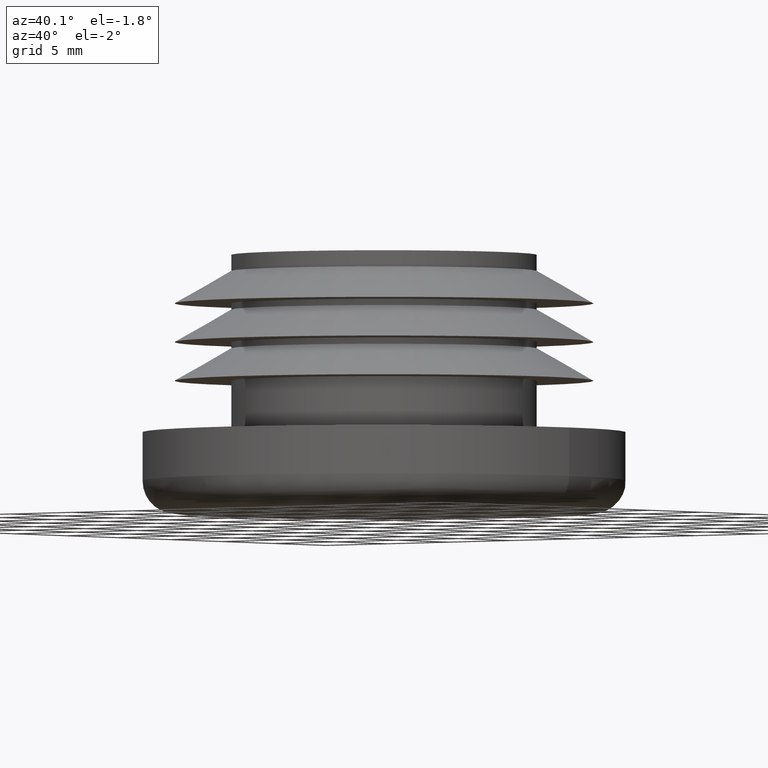
[diagram: clean part render]
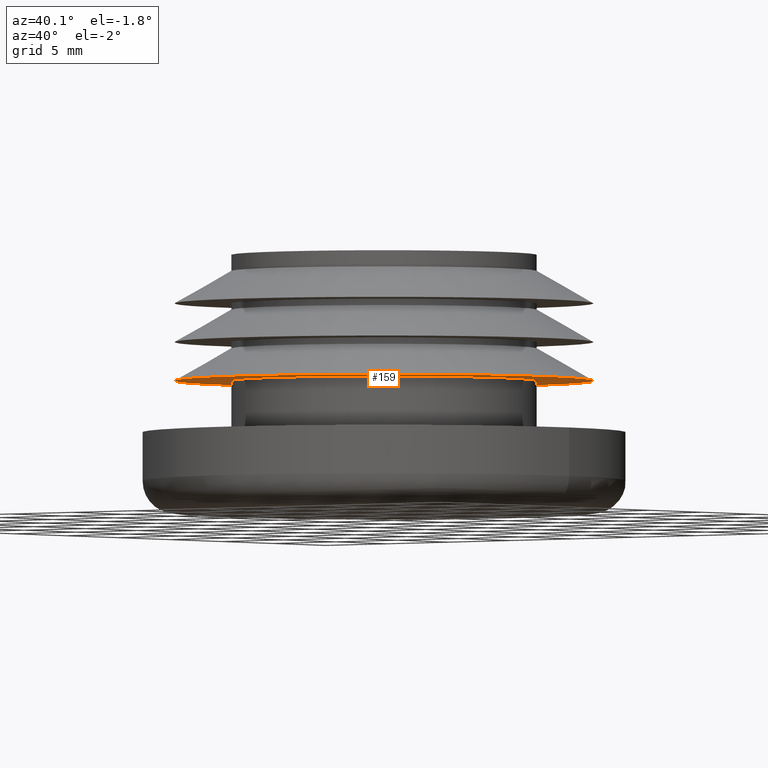
[diagram: same view with one face highlighted and labeled with its STEP entity id]
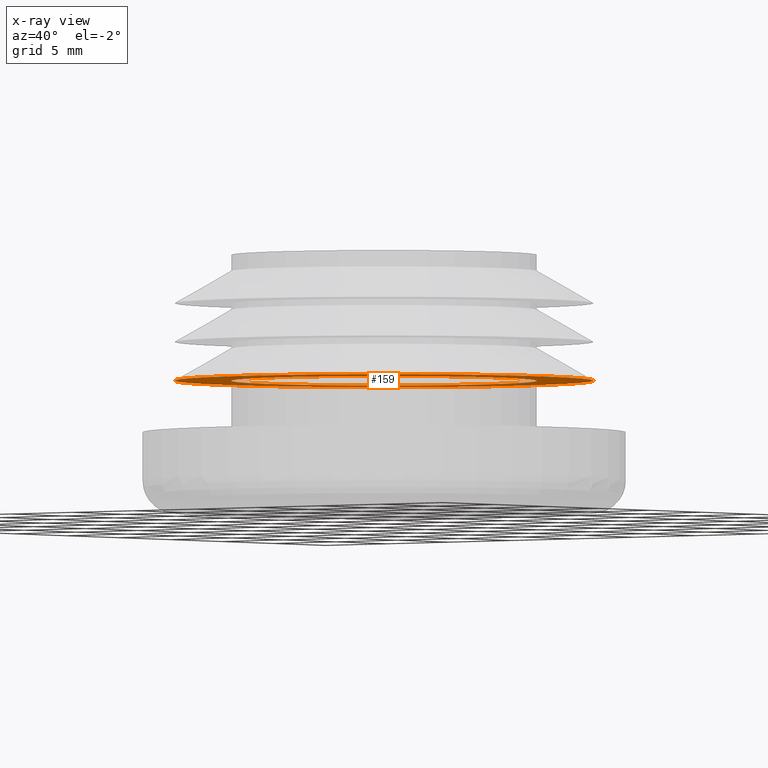
[diagram: x-ray of the same camera — body ghosted, the highlighted face saturated]
A machine part, auxiliary view. The second image highlights one B-rep face of the part: STEP entity #159.
The next image is the same camera in x-ray: the body ghosted, the highlighted face saturated — about 32% of this face is hidden behind the body in this view.
In plain terms, the highlighted planar face has unit normal (0, 0, -1).
Its self-contained STEP definition (entity closure, byte-faithful):
#24=PLANE('',#179);
#31=FACE_BOUND('',#63,.T.);
#45=FACE_OUTER_BOUND('',#62,.T.);
#62=EDGE_LOOP('',(#132));
#63=EDGE_LOOP('',(#133));
#88=CIRCLE('',#180,13.);
#89=CIRCLE('',#181,9.5);
#102=VERTEX_POINT('',#273);
#103=VERTEX_POINT('',#275);
#116=EDGE_CURVE('',#102,#102,#88,.T.);
#117=EDGE_CURVE('',#103,#103,#89,.T.);
#132=ORIENTED_EDGE('',*,*,#116,.T.);
#133=ORIENTED_EDGE('',*,*,#117,.F.);
#159=ADVANCED_FACE('',(#45,#31),#24,.T.);
#179=AXIS2_PLACEMENT_3D('',#272,#216,#217);
#180=AXIS2_PLACEMENT_3D('',#274,#218,#219);
#181=AXIS2_PLACEMENT_3D('',#276,#220,#221);
#216=DIRECTION('center_axis',(0.,0.,-1.));
#217=DIRECTION('ref_axis',(-1.,0.,0.));
#218=DIRECTION('center_axis',(0.,0.,-1.));
#219=DIRECTION('ref_axis',(0.,1.,0.));
#220=DIRECTION('center_axis',(0.,0.,-1.));
#221=DIRECTION('ref_axis',(0.,1.,0.));
#272=CARTESIAN_POINT('Origin',(0.,11.25,5.7));
#273=CARTESIAN_POINT('',(0.,13.,5.7));
#274=CARTESIAN_POINT('Origin',(0.,0.,5.7));
#275=CARTESIAN_POINT('',(0.,9.5,5.7));
#276=CARTESIAN_POINT('Origin',(0.,0.,5.7));